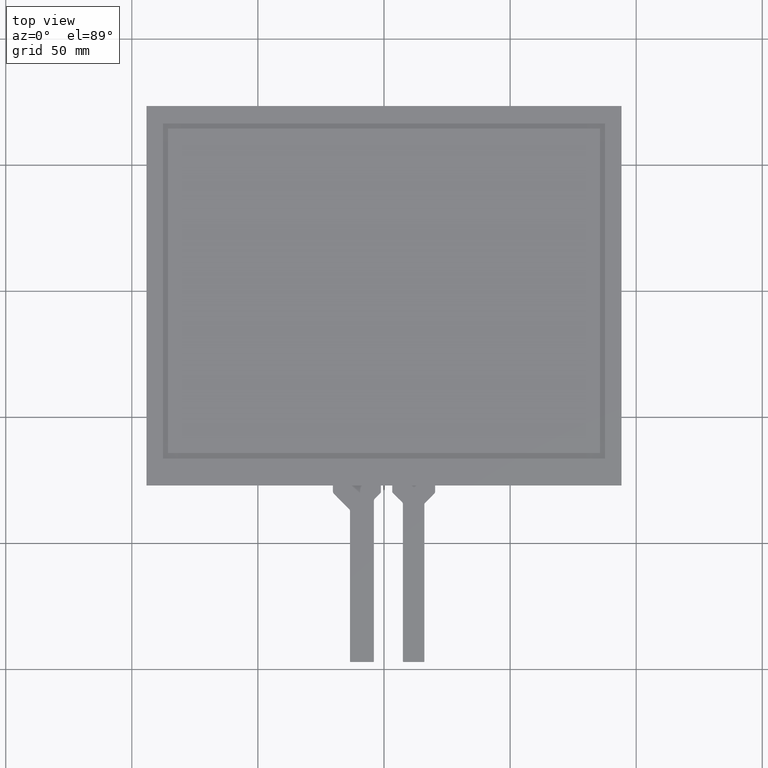
[diagram: clean part render]
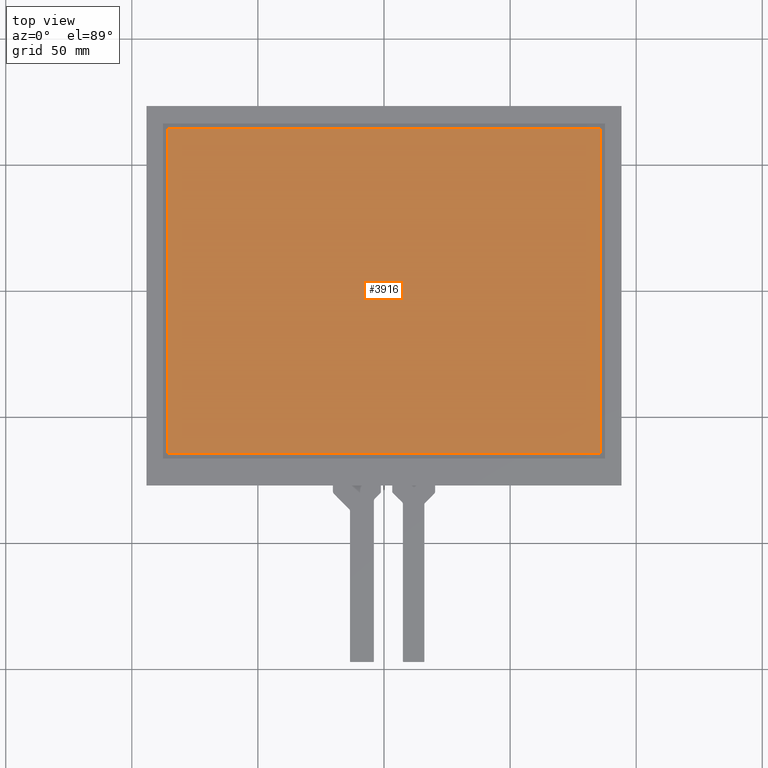
[diagram: same view with one face highlighted and labeled with its STEP entity id]
A machine part, top view. The second image highlights one B-rep face of the part: STEP entity #3916.
In plain terms, the highlighted planar face has unit normal (0, 0, 1).
Its self-contained STEP definition (entity closure, byte-faithful):
#226=PLANE('',#4150);
#416=FACE_OUTER_BOUND('',#610,.T.);
#610=EDGE_LOOP('',(#3708,#3709,#3710,#3711));
#1104=LINE('',#6148,#1632);
#1108=LINE('',#6156,#1636);
#1111=LINE('',#6162,#1639);
#1114=LINE('',#6167,#1642);
#1632=VECTOR('',#5044,10.);
#1636=VECTOR('',#5050,10.);
#1639=VECTOR('',#5055,10.);
#1642=VECTOR('',#5060,10.);
#2036=VERTEX_POINT('',#6146);
#2037=VERTEX_POINT('',#6147);
#2040=VERTEX_POINT('',#6155);
#2042=VERTEX_POINT('',#6161);
#2576=EDGE_CURVE('',#2036,#2037,#1104,.T.);
#2580=EDGE_CURVE('',#2040,#2036,#1108,.T.);
#2583=EDGE_CURVE('',#2042,#2040,#1111,.T.);
#2586=EDGE_CURVE('',#2037,#2042,#1114,.T.);
#3708=ORIENTED_EDGE('',*,*,#2576,.T.);
#3709=ORIENTED_EDGE('',*,*,#2586,.T.);
#3710=ORIENTED_EDGE('',*,*,#2583,.T.);
#3711=ORIENTED_EDGE('',*,*,#2580,.T.);
#3916=ADVANCED_FACE('',(#416),#226,.T.);
#4150=AXIS2_PLACEMENT_3D('',#6219,#5106,#5107);
#5044=DIRECTION('',(1.,0.,0.));
#5050=DIRECTION('',(0.,-1.,0.));
#5055=DIRECTION('',(-1.,0.,0.));
#5060=DIRECTION('',(0.,1.,0.));
#5106=DIRECTION('center_axis',(0.,0.,1.));
#5107=DIRECTION('ref_axis',(1.,0.,0.));
#6146=CARTESIAN_POINT('',(-85.7,-64.4,0.));
#6147=CARTESIAN_POINT('',(85.7,-64.4,0.));
#6148=CARTESIAN_POINT('',(-42.85,-64.4,0.));
#6155=CARTESIAN_POINT('',(-85.7,64.4,0.));
#6156=CARTESIAN_POINT('',(-85.7,31.275,0.));
#6161=CARTESIAN_POINT('',(85.7,64.4,0.));
#6162=CARTESIAN_POINT('',(42.85,64.4,0.));
#6167=CARTESIAN_POINT('',(85.7,-33.125,0.));
#6219=CARTESIAN_POINT('Origin',(-2.66453525910038E-14,-1.85,0.));